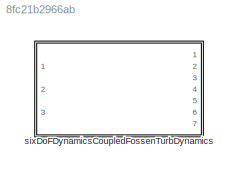
MODEL slx_8fc21b2966ab
KIND library
CONFIG AbsTol = auto
CONFIG EnableMultiTasking = off
CONFIG FixedStep = auto
CONFIG MaxStep = auto
CONFIG MinStep = auto
CONFIG RelTol = 1e-3
CONFIG SampleTimeConstraint = Unconstrained
CONFIG SolverName = VariableStepAuto
CONFIG StartTime = 0.0
CONFIG StopTime = 10.0
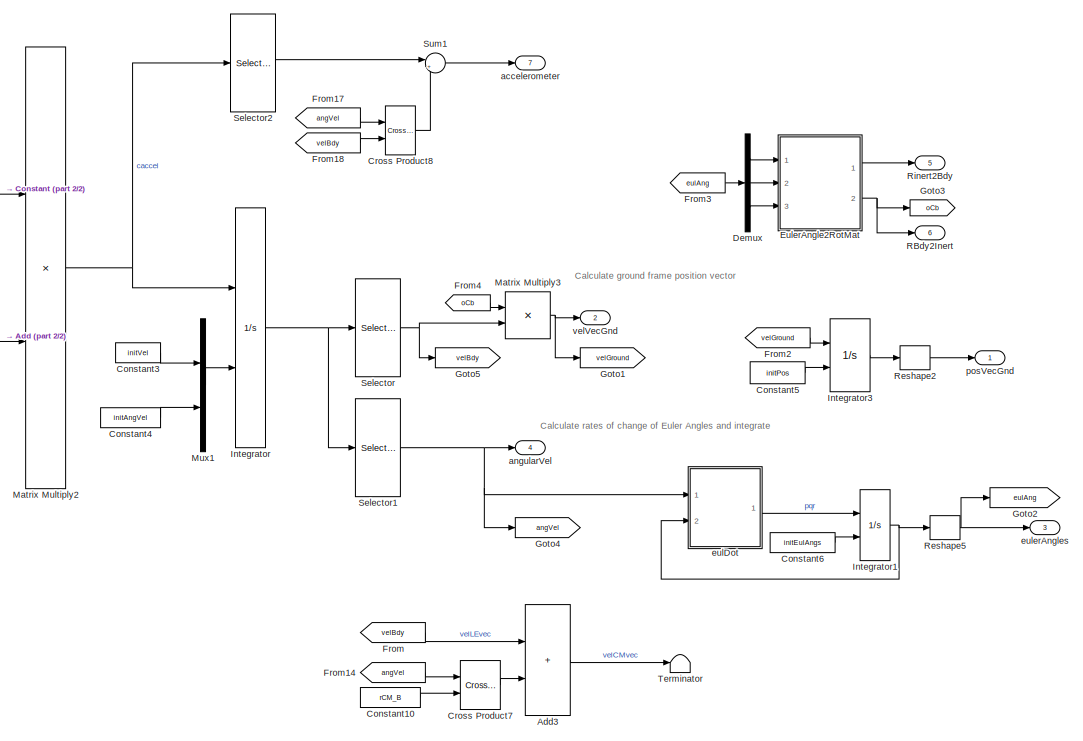
[diagram: sixDoFDynamicsCoupledFossenTurbDynamics - part 1/2, middle right region]
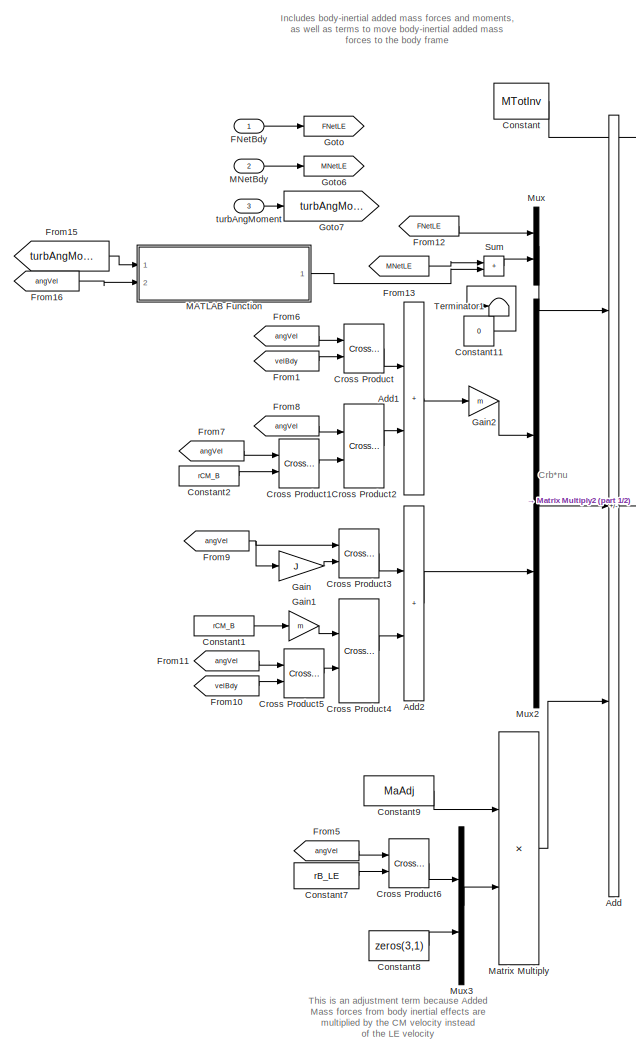
[diagram: sixDoFDynamicsCoupledFossenTurbDynamics - part 2/2, left side, full height]
BLOCK [SubSystem] sixDoFDynamicsCoupledFossenTurbDynamics
  Ports = [3, 7]
  RequestExecContextInheritance = off
  VariantControl = VSS_sixDoFDynamics_sixDoFDynamicsCoupledFossenTurbDynamics
BLOCK [Sum] sixDoFDynamicsCoupledFossenTurbDynamics/Add
  IconShape = rectangular
  Inputs = +-+
  Ports = [3, 1]
BLOCK [Sum] sixDoFDynamicsCoupledFossenTurbDynamics/Add1
  IconShape = rectangular
  Ports = [2, 1]
BLOCK [Sum] sixDoFDynamicsCoupledFossenTurbDynamics/Add2
  IconShape = rectangular
  Ports = [2, 1]
BLOCK [Sum] sixDoFDynamicsCoupledFossenTurbDynamics/Add3
  IconShape = rectangular
  Ports = [2, 1]
BLOCK [Constant] sixDoFDynamicsCoupledFossenTurbDynamics/Constant
  Value = MTotInv
  VectorParams1D = off
BLOCK [Constant] sixDoFDynamicsCoupledFossenTurbDynamics/Constant1
  Value = rCM_B
BLOCK [Constant] sixDoFDynamicsCoupledFossenTurbDynamics/Constant10
  Value = rCM_B
BLOCK [Constant] sixDoFDynamicsCoupledFossenTurbDynamics/Constant11
  Value = 0
BLOCK [Constant] sixDoFDynamicsCoupledFossenTurbDynamics/Constant2
  Value = rCM_B
BLOCK [Constant] sixDoFDynamicsCoupledFossenTurbDynamics/Constant3
  Value = initVel
BLOCK [Constant] sixDoFDynamicsCoupledFossenTurbDynamics/Constant4
  Value = initAngVel
BLOCK [Constant] sixDoFDynamicsCoupledFossenTurbDynamics/Constant5
  Value = initPos
BLOCK [Constant] sixDoFDynamicsCoupledFossenTurbDynamics/Constant6
  Value = initEulAngs
BLOCK [Constant] sixDoFDynamicsCoupledFossenTurbDynamics/Constant7
  Value = rB_LE
BLOCK [Constant] sixDoFDynamicsCoupledFossenTurbDynamics/Constant8
  Value = zeros(3,1)
BLOCK [Constant] sixDoFDynamicsCoupledFossenTurbDynamics/Constant9
  Value = MaAdj
BLOCK [Reference] sixDoFDynamicsCoupledFossenTurbDynamics/Cross Product  REF=vrlib/Utilities/Cross Product
  Ports = [2, 1]
  SourceBlock = vrlib/Utilities/Cross Product
  SourceProductBaseCode = SL
  SourceType = Cross Product
BLOCK [Reference] sixDoFDynamicsCoupledFossenTurbDynamics/Cross Product1  REF=vrlib/Utilities/Cross Product
  Ports = [2, 1]
  SourceBlock = vrlib/Utilities/Cross Product
  SourceProductBaseCode = SL
  SourceType = Cross Product
BLOCK [Reference] sixDoFDynamicsCoupledFossenTurbDynamics/Cross Product2  REF=vrlib/Utilities/Cross Product
  Ports = [2, 1]
  SourceBlock = vrlib/Utilities/Cross Product
  SourceProductBaseCode = SL
  SourceType = Cross Product
BLOCK [Reference] sixDoFDynamicsCoupledFossenTurbDynamics/Cross Product3  REF=vrlib/Utilities/Cross Product
  Ports = [2, 1]
  SourceBlock = vrlib/Utilities/Cross Product
  SourceProductBaseCode = SL
  SourceType = Cross Product
BLOCK [Reference] sixDoFDynamicsCoupledFossenTurbDynamics/Cross Product4  REF=vrlib/Utilities/Cross Product
  Ports = [2, 1]
  SourceBlock = vrlib/Utilities/Cross Product
  SourceProductBaseCode = SL
  SourceType = Cross Product
BLOCK [Reference] sixDoFDynamicsCoupledFossenTurbDynamics/Cross Product5  REF=vrlib/Utilities/Cross Product
  Ports = [2, 1]
  SourceBlock = vrlib/Utilities/Cross Product
  SourceProductBaseCode = SL
  SourceType = Cross Product
BLOCK [Reference] sixDoFDynamicsCoupledFossenTurbDynamics/Cross Product6  REF=vrlib/Utilities/Cross Product
  Ports = [2, 1]
  SourceBlock = vrlib/Utilities/Cross Product
  SourceProductBaseCode = SL
  SourceType = Cross Product
BLOCK [Reference] sixDoFDynamicsCoupledFossenTurbDynamics/Cross Product7  REF=vrlib/Utilities/Cross Product
  Ports = [2, 1]
  SourceBlock = vrlib/Utilities/Cross Product
  SourceProductBaseCode = SL
  SourceType = Cross Product
BLOCK [Reference] sixDoFDynamicsCoupledFossenTurbDynamics/Cross Product8  REF=vrlib/Utilities/Cross Product
  Ports = [2, 1]
  SourceBlock = vrlib/Utilities/Cross Product
  SourceProductBaseCode = SL
  SourceType = Cross Product
BLOCK [Demux] sixDoFDynamicsCoupledFossenTurbDynamics/Demux
  Outputs = 3
  Ports = [1, 3]
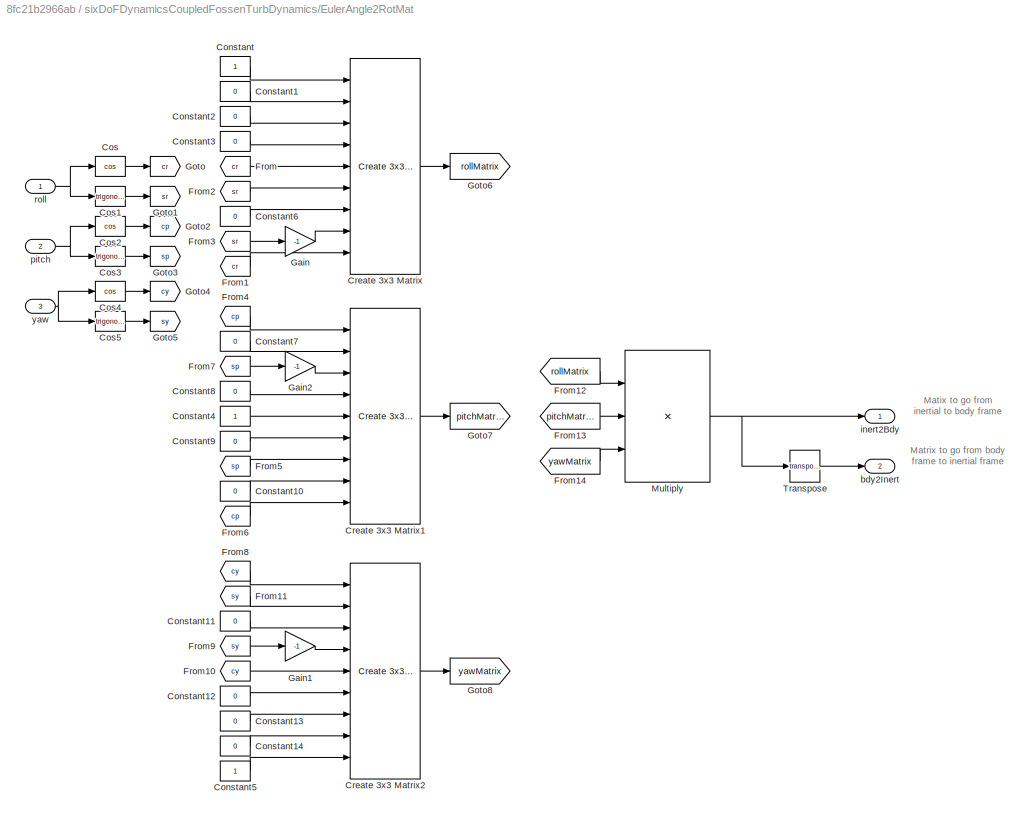
BLOCK [SubSystem] sixDoFDynamicsCoupledFossenTurbDynamics/EulerAngle2RotMat
  AncestorBlock = eulAng2RotMat_ul/EulerAngle2RotMat
  Ports = [3, 2]
  RequestExecContextInheritance = off
BLOCK [Constant] sixDoFDynamicsCoupledFossenTurbDynamics/EulerAngle2RotMat/Constant
BLOCK [Constant] sixDoFDynamicsCoupledFossenTurbDynamics/EulerAngle2RotMat/Constant1
  Value = 0
BLOCK [Constant] sixDoFDynamicsCoupledFossenTurbDynamics/EulerAngle2RotMat/Constant10
  Value = 0
BLOCK [Constant] sixDoFDynamicsCoupledFossenTurbDynamics/EulerAngle2RotMat/Constant11
  Value = 0
BLOCK [Constant] sixDoFDynamicsCoupledFossenTurbDynamics/EulerAngle2RotMat/Constant12
  Value = 0
BLOCK [Constant] sixDoFDynamicsCoupledFossenTurbDynamics/EulerAngle2RotMat/Constant13
  Value = 0
BLOCK [Constant] sixDoFDynamicsCoupledFossenTurbDynamics/EulerAngle2RotMat/Constant14
  Value = 0
BLOCK [Constant] sixDoFDynamicsCoupledFossenTurbDynamics/EulerAngle2RotMat/Constant2
  Value = 0
BLOCK [Constant] sixDoFDynamicsCoupledFossenTurbDynamics/EulerAngle2RotMat/Constant3
  Value = 0
BLOCK [Constant] sixDoFDynamicsCoupledFossenTurbDynamics/EulerAngle2RotMat/Constant4
BLOCK [Constant] sixDoFDynamicsCoupledFossenTurbDynamics/EulerAngle2RotMat/Constant5
BLOCK [Constant] sixDoFDynamicsCoupledFossenTurbDynamics/EulerAngle2RotMat/Constant6
  Value = 0
BLOCK [Constant] sixDoFDynamicsCoupledFossenTurbDynamics/EulerAngle2RotMat/Constant7
  Value = 0
BLOCK [Constant] sixDoFDynamicsCoupledFossenTurbDynamics/EulerAngle2RotMat/Constant8
  Value = 0
BLOCK [Constant] sixDoFDynamicsCoupledFossenTurbDynamics/EulerAngle2RotMat/Constant9
  Value = 0
BLOCK [Trigonometry] sixDoFDynamicsCoupledFossenTurbDynamics/EulerAngle2RotMat/Cos
  Operator = cos
  Ports = [1, 1]
BLOCK [Trigonometry] sixDoFDynamicsCoupledFossenTurbDynamics/EulerAngle2RotMat/Cos1
  Ports = [1, 1]
BLOCK [Trigonometry] sixDoFDynamicsCoupledFossenTurbDynamics/EulerAngle2RotMat/Cos2
  Operator = cos
  Ports = [1, 1]
BLOCK [Trigonometry] sixDoFDynamicsCoupledFossenTurbDynamics/EulerAngle2RotMat/Cos3
  Ports = [1, 1]
BLOCK [Trigonometry] sixDoFDynamicsCoupledFossenTurbDynamics/EulerAngle2RotMat/Cos4
  Operator = cos
  Ports = [1, 1]
BLOCK [Trigonometry] sixDoFDynamicsCoupledFossenTurbDynamics/EulerAngle2RotMat/Cos5
  Ports = [1, 1]
BLOCK [Reference] sixDoFDynamicsCoupledFossenTurbDynamics/EulerAngle2RotMat/Create 3x3 Matrix  REF=sharedutil/Create 3x3 Matrix
  Ports = [9, 1]
  SourceBlock = sharedutil/Create 3x3 Matrix
  SourceProductBaseCode = AE,PW,DR,MT,VE
  SourceType = Create 3x3 Matrix
BLOCK [Reference] sixDoFDynamicsCoupledFossenTurbDynamics/EulerAngle2RotMat/Create 3x3 Matrix1  REF=sharedutil/Create 3x3 Matrix
  Ports = [9, 1]
  SourceBlock = sharedutil/Create 3x3 Matrix
  SourceProductBaseCode = AE,PW,DR,MT,VE
  SourceType = Create 3x3 Matrix
BLOCK [Reference] sixDoFDynamicsCoupledFossenTurbDynamics/EulerAngle2RotMat/Create 3x3 Matrix2  REF=sharedutil/Create 3x3 Matrix
  Ports = [9, 1]
  SourceBlock = sharedutil/Create 3x3 Matrix
  SourceProductBaseCode = AE,PW,DR,MT,VE
  SourceType = Create 3x3 Matrix
BLOCK [From] sixDoFDynamicsCoupledFossenTurbDynamics/EulerAngle2RotMat/From
  GotoTag = cr
BLOCK [From] sixDoFDynamicsCoupledFossenTurbDynamics/EulerAngle2RotMat/From1
  GotoTag = cr
BLOCK [From] sixDoFDynamicsCoupledFossenTurbDynamics/EulerAngle2RotMat/From10
  GotoTag = cy
BLOCK [From] sixDoFDynamicsCoupledFossenTurbDynamics/EulerAngle2RotMat/From11
  GotoTag = sy
BLOCK [From] sixDoFDynamicsCoupledFossenTurbDynamics/EulerAngle2RotMat/From12
  GotoTag = rollMatrix
BLOCK [From] sixDoFDynamicsCoupledFossenTurbDynamics/EulerAngle2RotMat/From13
  GotoTag = pitchMatrix
BLOCK [From] sixDoFDynamicsCoupledFossenTurbDynamics/EulerAngle2RotMat/From14
  GotoTag = yawMatrix
BLOCK [From] sixDoFDynamicsCoupledFossenTurbDynamics/EulerAngle2RotMat/From2
  GotoTag = sr
BLOCK [From] sixDoFDynamicsCoupledFossenTurbDynamics/EulerAngle2RotMat/From3
  GotoTag = sr
BLOCK [From] sixDoFDynamicsCoupledFossenTurbDynamics/EulerAngle2RotMat/From4
  GotoTag = cp
BLOCK [From] sixDoFDynamicsCoupledFossenTurbDynamics/EulerAngle2RotMat/From5
  GotoTag = sp
BLOCK [From] sixDoFDynamicsCoupledFossenTurbDynamics/EulerAngle2RotMat/From6
  GotoTag = cp
BLOCK [From] sixDoFDynamicsCoupledFossenTurbDynamics/EulerAngle2RotMat/From7
  GotoTag = sp
BLOCK [From] sixDoFDynamicsCoupledFossenTurbDynamics/EulerAngle2RotMat/From8
  GotoTag = cy
BLOCK [From] sixDoFDynamicsCoupledFossenTurbDynamics/EulerAngle2RotMat/From9
  GotoTag = sy
BLOCK [Gain] sixDoFDynamicsCoupledFossenTurbDynamics/EulerAngle2RotMat/Gain
  Gain = -1
BLOCK [Gain] sixDoFDynamicsCoupledFossenTurbDynamics/EulerAngle2RotMat/Gain1
  Gain = -1
BLOCK [Gain] sixDoFDynamicsCoupledFossenTurbDynamics/EulerAngle2RotMat/Gain2
  Gain = -1
BLOCK [Goto] sixDoFDynamicsCoupledFossenTurbDynamics/EulerAngle2RotMat/Goto
  GotoTag = cr
BLOCK [Goto] sixDoFDynamicsCoupledFossenTurbDynamics/EulerAngle2RotMat/Goto1
  GotoTag = sr
BLOCK [Goto] sixDoFDynamicsCoupledFossenTurbDynamics/EulerAngle2RotMat/Goto2
  GotoTag = cp
BLOCK [Goto] sixDoFDynamicsCoupledFossenTurbDynamics/EulerAngle2RotMat/Goto3
  GotoTag = sp
BLOCK [Goto] sixDoFDynamicsCoupledFossenTurbDynamics/EulerAngle2RotMat/Goto4
  GotoTag = cy
BLOCK [Goto] sixDoFDynamicsCoupledFossenTurbDynamics/EulerAngle2RotMat/Goto5
  GotoTag = sy
BLOCK [Goto] sixDoFDynamicsCoupledFossenTurbDynamics/EulerAngle2RotMat/Goto6
  GotoTag = rollMatrix
BLOCK [Goto] sixDoFDynamicsCoupledFossenTurbDynamics/EulerAngle2RotMat/Goto7
  GotoTag = pitchMatrix
BLOCK [Goto] sixDoFDynamicsCoupledFossenTurbDynamics/EulerAngle2RotMat/Goto8
  GotoTag = yawMatrix
BLOCK [Product] sixDoFDynamicsCoupledFossenTurbDynamics/EulerAngle2RotMat/Multiply
  Inputs = 3
  Multiplication = Matrix(*)
  Ports = [3, 1]
BLOCK [Math] sixDoFDynamicsCoupledFossenTurbDynamics/EulerAngle2RotMat/Transpose
  Operator = transpose
  Ports = [1, 1]
  SignedPower = on
BLOCK [Outport] sixDoFDynamicsCoupledFossenTurbDynamics/EulerAngle2RotMat/bdy2Inert
  Port = 2
  VectorParamsAs1DForOutWhenUnconnected = off
BLOCK [Outport] sixDoFDynamicsCoupledFossenTurbDynamics/EulerAngle2RotMat/inert2Bdy
  VectorParamsAs1DForOutWhenUnconnected = off
BLOCK [Inport] sixDoFDynamicsCoupledFossenTurbDynamics/EulerAngle2RotMat/pitch
  Port = 2
BLOCK [Inport] sixDoFDynamicsCoupledFossenTurbDynamics/EulerAngle2RotMat/roll
BLOCK [Inport] sixDoFDynamicsCoupledFossenTurbDynamics/EulerAngle2RotMat/yaw
  Port = 3
BLOCK [Inport] sixDoFDynamicsCoupledFossenTurbDynamics/FNetBdy
BLOCK [From] sixDoFDynamicsCoupledFossenTurbDynamics/From
  GotoTag = velBdy
BLOCK [From] sixDoFDynamicsCoupledFossenTurbDynamics/From1
  GotoTag = velBdy
BLOCK [From] sixDoFDynamicsCoupledFossenTurbDynamics/From10
  GotoTag = velBdy
BLOCK [From] sixDoFDynamicsCoupledFossenTurbDynamics/From11
  GotoTag = angVel
BLOCK [From] sixDoFDynamicsCoupledFossenTurbDynamics/From12
  GotoTag = FNetLE
BLOCK [From] sixDoFDynamicsCoupledFossenTurbDynamics/From13
  GotoTag = MNetLE
BLOCK [From] sixDoFDynamicsCoupledFossenTurbDynamics/From14
  GotoTag = angVel
BLOCK [From] sixDoFDynamicsCoupledFossenTurbDynamics/From15
  GotoTag = turbAngMoment
BLOCK [From] sixDoFDynamicsCoupledFossenTurbDynamics/From16
  GotoTag = angVel
BLOCK [From] sixDoFDynamicsCoupledFossenTurbDynamics/From17
  GotoTag = angVel
BLOCK [From] sixDoFDynamicsCoupledFossenTurbDynamics/From18
  GotoTag = velBdy
BLOCK [From] sixDoFDynamicsCoupledFossenTurbDynamics/From2
  GotoTag = velGround
BLOCK [From] sixDoFDynamicsCoupledFossenTurbDynamics/From3
  GotoTag = eulAng
BLOCK [From] sixDoFDynamicsCoupledFossenTurbDynamics/From4
  GotoTag = oCb
BLOCK [From] sixDoFDynamicsCoupledFossenTurbDynamics/From5
  GotoTag = angVel
BLOCK [From] sixDoFDynamicsCoupledFossenTurbDynamics/From6
  GotoTag = angVel
BLOCK [From] sixDoFDynamicsCoupledFossenTurbDynamics/From7
  GotoTag = angVel
BLOCK [From] sixDoFDynamicsCoupledFossenTurbDynamics/From8
  GotoTag = angVel
BLOCK [From] sixDoFDynamicsCoupledFossenTurbDynamics/From9
  GotoTag = angVel
BLOCK [Gain] sixDoFDynamicsCoupledFossenTurbDynamics/Gain
  Gain = J
  Multiplication = Matrix(K*u)
BLOCK [Gain] sixDoFDynamicsCoupledFossenTurbDynamics/Gain1
  Gain = m
BLOCK [Gain] sixDoFDynamicsCoupledFossenTurbDynamics/Gain2
  Gain = m
BLOCK [Goto] sixDoFDynamicsCoupledFossenTurbDynamics/Goto
  GotoTag = FNetLE
BLOCK [Goto] sixDoFDynamicsCoupledFossenTurbDynamics/Goto1
  GotoTag = velGround
BLOCK [Goto] sixDoFDynamicsCoupledFossenTurbDynamics/Goto2
  GotoTag = eulAng
BLOCK [Goto] sixDoFDynamicsCoupledFossenTurbDynamics/Goto3
  GotoTag = oCb
BLOCK [Goto] sixDoFDynamicsCoupledFossenTurbDynamics/Goto4
  GotoTag = angVel
BLOCK [Goto] sixDoFDynamicsCoupledFossenTurbDynamics/Goto5
  GotoTag = velBdy
BLOCK [Goto] sixDoFDynamicsCoupledFossenTurbDynamics/Goto6
  GotoTag = MNetLE
BLOCK [Goto] sixDoFDynamicsCoupledFossenTurbDynamics/Goto7
  GotoTag = turbAngMoment
BLOCK [Integrator] sixDoFDynamicsCoupledFossenTurbDynamics/Integrator
  InitialConditionSource = external
  Ports = [2, 1]
BLOCK [Integrator] sixDoFDynamicsCoupledFossenTurbDynamics/Integrator1
  InitialCondition = initEulAngs
  InitialConditionSource = external
  Ports = [2, 1]
BLOCK [Integrator] sixDoFDynamicsCoupledFossenTurbDynamics/Integrator3
  InitialCondition = initPos
  InitialConditionSource = external
  Ports = [2, 1]
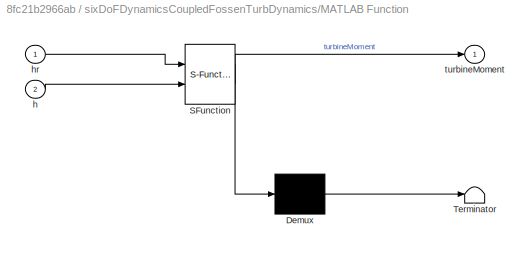
BLOCK [SubSystem] sixDoFDynamicsCoupledFossenTurbDynamics/MATLAB Function
  ErrorFcn = Stateflow.Translate.translate
  PermitHierarchicalResolution = ExplicitOnly
  Ports = [2, 1]
  RequestExecContextInheritance = off
  SFBlockType = MATLAB Function
  TreatAsAtomicUnit = on
BLOCK [Demux] sixDoFDynamicsCoupledFossenTurbDynamics/MATLAB Function/ Demux 
  Outputs = 1
  Ports = [1, 1]
BLOCK [S-Function] sixDoFDynamicsCoupledFossenTurbDynamics/MATLAB Function/ SFunction 
  EnableBusSupport = off
  FunctionName = sf_sfun
  PortCounts = [2 2]
  Ports = [2, 2]
  SFcnIsStateOwnerBlock = off
  SFunctionDeploymentMode = off
  Tag = Stateflow S-Function 113
BLOCK [Terminator] sixDoFDynamicsCoupledFossenTurbDynamics/MATLAB Function/ Terminator 
BLOCK [Inport] sixDoFDynamicsCoupledFossenTurbDynamics/MATLAB Function/h
  Port = 2
BLOCK [Inport] sixDoFDynamicsCoupledFossenTurbDynamics/MATLAB Function/hr
BLOCK [Outport] sixDoFDynamicsCoupledFossenTurbDynamics/MATLAB Function/turbineMoment
BLOCK [Inport] sixDoFDynamicsCoupledFossenTurbDynamics/MNetBdy
  Port = 2
BLOCK [Product] sixDoFDynamicsCoupledFossenTurbDynamics/Matrix Multiply
  Multiplication = Matrix(*)
  Ports = [2, 1]
BLOCK [Product] sixDoFDynamicsCoupledFossenTurbDynamics/Matrix Multiply2
  Multiplication = Matrix(*)
  Ports = [2, 1]
BLOCK [Product] sixDoFDynamicsCoupledFossenTurbDynamics/Matrix Multiply3
  Multiplication = Matrix(*)
  Ports = [2, 1]
BLOCK [Mux] sixDoFDynamicsCoupledFossenTurbDynamics/Mux
  DisplayOption = bar
  Inputs = 2
  Ports = [2, 1]
BLOCK [Mux] sixDoFDynamicsCoupledFossenTurbDynamics/Mux1
  DisplayOption = bar
  Inputs = 2
  Ports = [2, 1]
BLOCK [Mux] sixDoFDynamicsCoupledFossenTurbDynamics/Mux2
  DisplayOption = bar
  Inputs = 2
  Ports = [2, 1]
BLOCK [Mux] sixDoFDynamicsCoupledFossenTurbDynamics/Mux3
  DisplayOption = bar
  Inputs = 2
  Ports = [2, 1]
BLOCK [Outport] sixDoFDynamicsCoupledFossenTurbDynamics/RBdy2Inert
  Port = 6
  VectorParamsAs1DForOutWhenUnconnected = off
BLOCK [Reshape] sixDoFDynamicsCoupledFossenTurbDynamics/Reshape2
  OutputDimensionality = Column vector (2-D)
  Ports = [1, 1]
BLOCK [Reshape] sixDoFDynamicsCoupledFossenTurbDynamics/Reshape5
  OutputDimensionality = Column vector (2-D)
  Ports = [1, 1]
BLOCK [Outport] sixDoFDynamicsCoupledFossenTurbDynamics/Rinert2Bdy
  Port = 5
  VectorParamsAs1DForOutWhenUnconnected = off
BLOCK [Selector] sixDoFDynamicsCoupledFossenTurbDynamics/Selector
  IndexOptions = Index vector (dialog)
  Indices = [1 2 3]
  InputPortWidth = 6
  OutputSizes = 1
  Ports = [1, 1]
BLOCK [Selector] sixDoFDynamicsCoupledFossenTurbDynamics/Selector1
  IndexOptions = Index vector (dialog)
  Indices = [4 5 6]
  InputPortWidth = 6
  OutputSizes = 1
  Ports = [1, 1]
BLOCK [Selector] sixDoFDynamicsCoupledFossenTurbDynamics/Selector2
  IndexOptions = Index vector (dialog)
  Indices = [1 2 3]
  InputPortWidth = 6
  OutputSizes = 1
  Ports = [1, 1]
BLOCK [Sum] sixDoFDynamicsCoupledFossenTurbDynamics/Sum
  IconShape = rectangular
  Ports = [2, 1]
BLOCK [Sum] sixDoFDynamicsCoupledFossenTurbDynamics/Sum1
  Inputs = |++
  Ports = [2, 1]
BLOCK [Terminator] sixDoFDynamicsCoupledFossenTurbDynamics/Terminator
BLOCK [Terminator] sixDoFDynamicsCoupledFossenTurbDynamics/Terminator1
BLOCK [Outport] sixDoFDynamicsCoupledFossenTurbDynamics/accelerometer
  Port = 7
  VectorParamsAs1DForOutWhenUnconnected = off
BLOCK [Outport] sixDoFDynamicsCoupledFossenTurbDynamics/angularVel
  Port = 4
  VectorParamsAs1DForOutWhenUnconnected = off
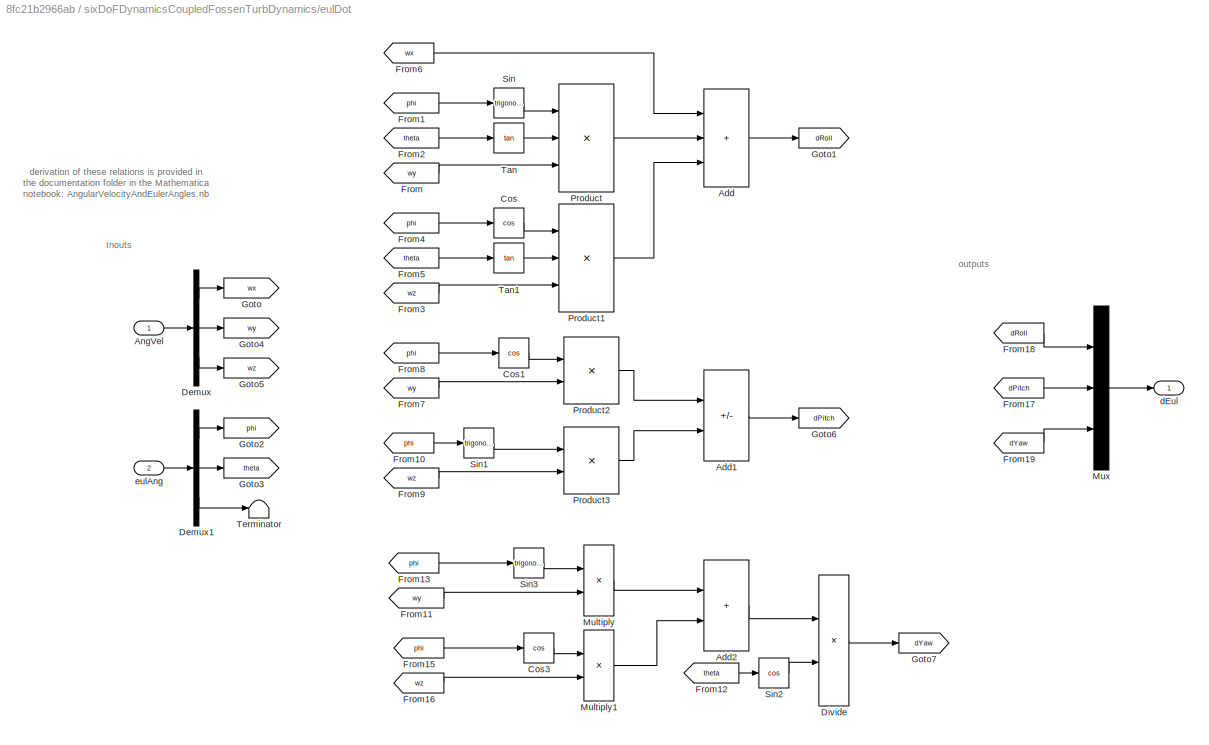
BLOCK [SubSystem] sixDoFDynamicsCoupledFossenTurbDynamics/eulDot
  AncestorBlock = eulDot/eulDot
  Ports = [2, 1]
  RequestExecContextInheritance = off
BLOCK [Sum] sixDoFDynamicsCoupledFossenTurbDynamics/eulDot/Add
  IconShape = rectangular
  Inputs = +++
  Ports = [3, 1]
BLOCK [Sum] sixDoFDynamicsCoupledFossenTurbDynamics/eulDot/Add1
  IconShape = rectangular
  Inputs = +-
  Ports = [2, 1]
BLOCK [Sum] sixDoFDynamicsCoupledFossenTurbDynamics/eulDot/Add2
  IconShape = rectangular
  Ports = [2, 1]
BLOCK [Inport] sixDoFDynamicsCoupledFossenTurbDynamics/eulDot/AngVel
BLOCK [Trigonometry] sixDoFDynamicsCoupledFossenTurbDynamics/eulDot/Cos
  Operator = cos
  Ports = [1, 1]
BLOCK [Trigonometry] sixDoFDynamicsCoupledFossenTurbDynamics/eulDot/Cos1
  Operator = cos
  Ports = [1, 1]
BLOCK [Trigonometry] sixDoFDynamicsCoupledFossenTurbDynamics/eulDot/Cos3
  Operator = cos
  Ports = [1, 1]
BLOCK [Demux] sixDoFDynamicsCoupledFossenTurbDynamics/eulDot/Demux
  Outputs = 3
  Ports = [1, 3]
BLOCK [Demux] sixDoFDynamicsCoupledFossenTurbDynamics/eulDot/Demux1
  Outputs = 3
  Ports = [1, 3]
BLOCK [Product] sixDoFDynamicsCoupledFossenTurbDynamics/eulDot/Divide
  Inputs = */
  Ports = [2, 1]
BLOCK [From] sixDoFDynamicsCoupledFossenTurbDynamics/eulDot/From
  GotoTag = wy
BLOCK [From] sixDoFDynamicsCoupledFossenTurbDynamics/eulDot/From1
  GotoTag = phi
BLOCK [From] sixDoFDynamicsCoupledFossenTurbDynamics/eulDot/From10
  GotoTag = phi
BLOCK [From] sixDoFDynamicsCoupledFossenTurbDynamics/eulDot/From11
  GotoTag = wy
BLOCK [From] sixDoFDynamicsCoupledFossenTurbDynamics/eulDot/From12
  GotoTag = theta
BLOCK [From] sixDoFDynamicsCoupledFossenTurbDynamics/eulDot/From13
  GotoTag = phi
BLOCK [From] sixDoFDynamicsCoupledFossenTurbDynamics/eulDot/From15
  GotoTag = phi
BLOCK [From] sixDoFDynamicsCoupledFossenTurbDynamics/eulDot/From16
  GotoTag = wz
BLOCK [From] sixDoFDynamicsCoupledFossenTurbDynamics/eulDot/From17
  GotoTag = dPitch
BLOCK [From] sixDoFDynamicsCoupledFossenTurbDynamics/eulDot/From18
  GotoTag = dRoll
BLOCK [From] sixDoFDynamicsCoupledFossenTurbDynamics/eulDot/From19
  GotoTag = dYaw
BLOCK [From] sixDoFDynamicsCoupledFossenTurbDynamics/eulDot/From2
  GotoTag = theta
BLOCK [From] sixDoFDynamicsCoupledFossenTurbDynamics/eulDot/From3
  GotoTag = wz
BLOCK [From] sixDoFDynamicsCoupledFossenTurbDynamics/eulDot/From4
  GotoTag = phi
BLOCK [From] sixDoFDynamicsCoupledFossenTurbDynamics/eulDot/From5
  GotoTag = theta
BLOCK [From] sixDoFDynamicsCoupledFossenTurbDynamics/eulDot/From6
  GotoTag = wx
BLOCK [From] sixDoFDynamicsCoupledFossenTurbDynamics/eulDot/From7
  GotoTag = wy
BLOCK [From] sixDoFDynamicsCoupledFossenTurbDynamics/eulDot/From8
  GotoTag = phi
BLOCK [From] sixDoFDynamicsCoupledFossenTurbDynamics/eulDot/From9
  GotoTag = wz
BLOCK [Goto] sixDoFDynamicsCoupledFossenTurbDynamics/eulDot/Goto
  GotoTag = wx
BLOCK [Goto] sixDoFDynamicsCoupledFossenTurbDynamics/eulDot/Goto1
  GotoTag = dRoll
BLOCK [Goto] sixDoFDynamicsCoupledFossenTurbDynamics/eulDot/Goto2
  GotoTag = phi
BLOCK [Goto] sixDoFDynamicsCoupledFossenTurbDynamics/eulDot/Goto3
  GotoTag = theta
BLOCK [Goto] sixDoFDynamicsCoupledFossenTurbDynamics/eulDot/Goto4
  GotoTag = wy
BLOCK [Goto] sixDoFDynamicsCoupledFossenTurbDynamics/eulDot/Goto5
  GotoTag = wz
BLOCK [Goto] sixDoFDynamicsCoupledFossenTurbDynamics/eulDot/Goto6
  GotoTag = dPitch
BLOCK [Goto] sixDoFDynamicsCoupledFossenTurbDynamics/eulDot/Goto7
  GotoTag = dYaw
BLOCK [Product] sixDoFDynamicsCoupledFossenTurbDynamics/eulDot/Multiply
  Ports = [2, 1]
BLOCK [Product] sixDoFDynamicsCoupledFossenTurbDynamics/eulDot/Multiply1
  Ports = [2, 1]
BLOCK [Mux] sixDoFDynamicsCoupledFossenTurbDynamics/eulDot/Mux
  DisplayOption = bar
  Inputs = 3
  Ports = [3, 1]
BLOCK [Product] sixDoFDynamicsCoupledFossenTurbDynamics/eulDot/Product
  Inputs = 3
  Ports = [3, 1]
BLOCK [Product] sixDoFDynamicsCoupledFossenTurbDynamics/eulDot/Product1
  Inputs = 3
  Ports = [3, 1]
BLOCK [Product] sixDoFDynamicsCoupledFossenTurbDynamics/eulDot/Product2
  Ports = [2, 1]
BLOCK [Product] sixDoFDynamicsCoupledFossenTurbDynamics/eulDot/Product3
  Ports = [2, 1]
BLOCK [Trigonometry] sixDoFDynamicsCoupledFossenTurbDynamics/eulDot/Sin
  Ports = [1, 1]
BLOCK [Trigonometry] sixDoFDynamicsCoupledFossenTurbDynamics/eulDot/Sin1
  Ports = [1, 1]
BLOCK [Trigonometry] sixDoFDynamicsCoupledFossenTurbDynamics/eulDot/Sin2
  Operator = cos
  Ports = [1, 1]
BLOCK [Trigonometry] sixDoFDynamicsCoupledFossenTurbDynamics/eulDot/Sin3
  Ports = [1, 1]
BLOCK [Trigonometry] sixDoFDynamicsCoupledFossenTurbDynamics/eulDot/Tan
  Operator = tan
  Ports = [1, 1]
BLOCK [Trigonometry] sixDoFDynamicsCoupledFossenTurbDynamics/eulDot/Tan1
  Operator = tan
  Ports = [1, 1]
BLOCK [Terminator] sixDoFDynamicsCoupledFossenTurbDynamics/eulDot/Terminator
BLOCK [Outport] sixDoFDynamicsCoupledFossenTurbDynamics/eulDot/dEul
  VectorParamsAs1DForOutWhenUnconnected = off
BLOCK [Inport] sixDoFDynamicsCoupledFossenTurbDynamics/eulDot/eulAng
  Port = 2
BLOCK [Outport] sixDoFDynamicsCoupledFossenTurbDynamics/eulerAngles
  Port = 3
  VectorParamsAs1DForOutWhenUnconnected = off
BLOCK [Outport] sixDoFDynamicsCoupledFossenTurbDynamics/posVecGnd
  VectorParamsAs1DForOutWhenUnconnected = off
BLOCK [Inport] sixDoFDynamicsCoupledFossenTurbDynamics/turbAngMoment
  Port = 3
BLOCK [Outport] sixDoFDynamicsCoupledFossenTurbDynamics/velVecGnd
  Port = 2
  VectorParamsAs1DForOutWhenUnconnected = off
ANNOTATION sixDoFDynamicsCoupledFossenTurbDynamics: Includes body-inertial added mass forces and moments, as well as terms to move body-inertial added mass forces to the body frame
ANNOTATION sixDoFDynamicsCoupledFossenTurbDynamics: This is an adjustment term because Added Mass forces from body inertial effects are multiplied by the CM velocity instead of the LE velocity
ANNOTATION sixDoFDynamicsCoupledFossenTurbDynamics: Calculate ground frame position vector
ANNOTATION sixDoFDynamicsCoupledFossenTurbDynamics: Calculate rates of change of Euler Angles and integrate
ANNOTATION sixDoFDynamicsCoupledFossenTurbDynamics: Crb*nu
ANNOTATION sixDoFDynamicsCoupledFossenTurbDynamics/EulerAngle2RotMat: Matix to go from inertial to body frame
ANNOTATION sixDoFDynamicsCoupledFossenTurbDynamics/EulerAngle2RotMat: Matrix to go from body frame to inertial frame
ANNOTATION sixDoFDynamicsCoupledFossenTurbDynamics/eulDot: Inouts
ANNOTATION sixDoFDynamicsCoupledFossenTurbDynamics/eulDot: derivation of these relations is provided in the documentation folder in the Mathematica notebook: AngularVelocityAndEulerAngles.nb
ANNOTATION sixDoFDynamicsCoupledFossenTurbDynamics/eulDot: outputs
LINE sixDoFDynamicsCoupledFossenTurbDynamics/Add1:1 -> sixDoFDynamicsCoupledFossenTurbDynamics/Gain2:1
LINE sixDoFDynamicsCoupledFossenTurbDynamics/Add2:1 -> sixDoFDynamicsCoupledFossenTurbDynamics/Mux2:2
LINE sixDoFDynamicsCoupledFossenTurbDynamics/Add3:1 -> sixDoFDynamicsCoupledFossenTurbDynamics/Terminator:1
LINE sixDoFDynamicsCoupledFossenTurbDynamics/Add:1 -> sixDoFDynamicsCoupledFossenTurbDynamics/Matrix Multiply2:2
LINE sixDoFDynamicsCoupledFossenTurbDynamics/Constant10:1 -> sixDoFDynamicsCoupledFossenTurbDynamics/Cross Product7:2
LINE sixDoFDynamicsCoupledFossenTurbDynamics/Constant11:1 -> sixDoFDynamicsCoupledFossenTurbDynamics/Terminator1:1
LINE sixDoFDynamicsCoupledFossenTurbDynamics/Constant1:1 -> sixDoFDynamicsCoupledFossenTurbDynamics/Gain1:1
LINE sixDoFDynamicsCoupledFossenTurbDynamics/Constant2:1 -> sixDoFDynamicsCoupledFossenTurbDynamics/Cross Product1:2
LINE sixDoFDynamicsCoupledFossenTurbDynamics/Constant3:1 -> sixDoFDynamicsCoupledFossenTurbDynamics/Mux1:1
LINE sixDoFDynamicsCoupledFossenTurbDynamics/Constant4:1 -> sixDoFDynamicsCoupledFossenTurbDynamics/Mux1:2
LINE sixDoFDynamicsCoupledFossenTurbDynamics/Constant5:1 -> sixDoFDynamicsCoupledFossenTurbDynamics/Integrator3:2
LINE sixDoFDynamicsCoupledFossenTurbDynamics/Constant6:1 -> sixDoFDynamicsCoupledFossenTurbDynamics/Integrator1:2
LINE sixDoFDynamicsCoupledFossenTurbDynamics/Constant7:1 -> sixDoFDynamicsCoupledFossenTurbDynamics/Cross Product6:2
LINE sixDoFDynamicsCoupledFossenTurbDynamics/Constant8:1 -> sixDoFDynamicsCoupledFossenTurbDynamics/Mux3:2
LINE sixDoFDynamicsCoupledFossenTurbDynamics/Constant9:1 -> sixDoFDynamicsCoupledFossenTurbDynamics/Matrix Multiply:1
LINE sixDoFDynamicsCoupledFossenTurbDynamics/Constant:1 -> sixDoFDynamicsCoupledFossenTurbDynamics/Matrix Multiply2:1
LINE sixDoFDynamicsCoupledFossenTurbDynamics/Cross Product1:1 -> sixDoFDynamicsCoupledFossenTurbDynamics/Cross Product2:2
LINE sixDoFDynamicsCoupledFossenTurbDynamics/Cross Product2:1 -> sixDoFDynamicsCoupledFossenTurbDynamics/Add1:2
LINE sixDoFDynamicsCoupledFossenTurbDynamics/Cross Product3:1 -> sixDoFDynamicsCoupledFossenTurbDynamics/Add2:1
LINE sixDoFDynamicsCoupledFossenTurbDynamics/Cross Product4:1 -> sixDoFDynamicsCoupledFossenTurbDynamics/Add2:2
LINE sixDoFDynamicsCoupledFossenTurbDynamics/Cross Product5:1 -> sixDoFDynamicsCoupledFossenTurbDynamics/Cross Product4:2
LINE sixDoFDynamicsCoupledFossenTurbDynamics/Cross Product6:1 -> sixDoFDynamicsCoupledFossenTurbDynamics/Mux3:1
LINE sixDoFDynamicsCoupledFossenTurbDynamics/Cross Product7:1 -> sixDoFDynamicsCoupledFossenTurbDynamics/Add3:2
LINE sixDoFDynamicsCoupledFossenTurbDynamics/Cross Product8:1 -> sixDoFDynamicsCoupledFossenTurbDynamics/Sum1:2
LINE sixDoFDynamicsCoupledFossenTurbDynamics/Cross Product:1 -> sixDoFDynamicsCoupledFossenTurbDynamics/Add1:1
LINE sixDoFDynamicsCoupledFossenTurbDynamics/Demux:1 -> sixDoFDynamicsCoupledFossenTurbDynamics/EulerAngle2RotMat:1
LINE sixDoFDynamicsCoupledFossenTurbDynamics/Demux:2 -> sixDoFDynamicsCoupledFossenTurbDynamics/EulerAngle2RotMat:2
LINE sixDoFDynamicsCoupledFossenTurbDynamics/Demux:3 -> sixDoFDynamicsCoupledFossenTurbDynamics/EulerAngle2RotMat:3
LINE sixDoFDynamicsCoupledFossenTurbDynamics/EulerAngle2RotMat:1 -> sixDoFDynamicsCoupledFossenTurbDynamics/Rinert2Bdy:1
NET sixDoFDynamicsCoupledFossenTurbDynamics/EulerAngle2RotMat:2 -> sixDoFDynamicsCoupledFossenTurbDynamics/Goto3:1, sixDoFDynamicsCoupledFossenTurbDynamics/RBdy2Inert:1
LINE sixDoFDynamicsCoupledFossenTurbDynamics/FNetBdy:1 -> sixDoFDynamicsCoupledFossenTurbDynamics/Goto:1
LINE sixDoFDynamicsCoupledFossenTurbDynamics/From10:1 -> sixDoFDynamicsCoupledFossenTurbDynamics/Cross Product5:2
LINE sixDoFDynamicsCoupledFossenTurbDynamics/From11:1 -> sixDoFDynamicsCoupledFossenTurbDynamics/Cross Product5:1
LINE sixDoFDynamicsCoupledFossenTurbDynamics/From12:1 -> sixDoFDynamicsCoupledFossenTurbDynamics/Mux:1
LINE sixDoFDynamicsCoupledFossenTurbDynamics/From13:1 -> sixDoFDynamicsCoupledFossenTurbDynamics/Sum:1
LINE sixDoFDynamicsCoupledFossenTurbDynamics/From14:1 -> sixDoFDynamicsCoupledFossenTurbDynamics/Cross Product7:1
LINE sixDoFDynamicsCoupledFossenTurbDynamics/From15:1 -> sixDoFDynamicsCoupledFossenTurbDynamics/MATLAB Function:1
LINE sixDoFDynamicsCoupledFossenTurbDynamics/From16:1 -> sixDoFDynamicsCoupledFossenTurbDynamics/MATLAB Function:2
LINE sixDoFDynamicsCoupledFossenTurbDynamics/From17:1 -> sixDoFDynamicsCoupledFossenTurbDynamics/Cross Product8:1
LINE sixDoFDynamicsCoupledFossenTurbDynamics/From18:1 -> sixDoFDynamicsCoupledFossenTurbDynamics/Cross Product8:2
LINE sixDoFDynamicsCoupledFossenTurbDynamics/From1:1 -> sixDoFDynamicsCoupledFossenTurbDynamics/Cross Product:2
LINE sixDoFDynamicsCoupledFossenTurbDynamics/From2:1 -> sixDoFDynamicsCoupledFossenTurbDynamics/Integrator3:1
LINE sixDoFDynamicsCoupledFossenTurbDynamics/From3:1 -> sixDoFDynamicsCoupledFossenTurbDynamics/Demux:1
LINE sixDoFDynamicsCoupledFossenTurbDynamics/From4:1 -> sixDoFDynamicsCoupledFossenTurbDynamics/Matrix Multiply3:1
LINE sixDoFDynamicsCoupledFossenTurbDynamics/From5:1 -> sixDoFDynamicsCoupledFossenTurbDynamics/Cross Product6:1
LINE sixDoFDynamicsCoupledFossenTurbDynamics/From6:1 -> sixDoFDynamicsCoupledFossenTurbDynamics/Cross Product:1
LINE sixDoFDynamicsCoupledFossenTurbDynamics/From7:1 -> sixDoFDynamicsCoupledFossenTurbDynamics/Cross Product1:1
LINE sixDoFDynamicsCoupledFossenTurbDynamics/From8:1 -> sixDoFDynamicsCoupledFossenTurbDynamics/Cross Product2:1
NET sixDoFDynamicsCoupledFossenTurbDynamics/From9:1 -> sixDoFDynamicsCoupledFossenTurbDynamics/Cross Product3:1, sixDoFDynamicsCoupledFossenTurbDynamics/Gain:1
LINE sixDoFDynamicsCoupledFossenTurbDynamics/From:1 -> sixDoFDynamicsCoupledFossenTurbDynamics/Add3:1
LINE sixDoFDynamicsCoupledFossenTurbDynamics/Gain1:1 -> sixDoFDynamicsCoupledFossenTurbDynamics/Cross Product4:1
LINE sixDoFDynamicsCoupledFossenTurbDynamics/Gain2:1 -> sixDoFDynamicsCoupledFossenTurbDynamics/Mux2:1
LINE sixDoFDynamicsCoupledFossenTurbDynamics/Gain:1 -> sixDoFDynamicsCoupledFossenTurbDynamics/Cross Product3:2
NET sixDoFDynamicsCoupledFossenTurbDynamics/Integrator1:1 -> sixDoFDynamicsCoupledFossenTurbDynamics/Reshape5:1, sixDoFDynamicsCoupledFossenTurbDynamics/eulDot:2
LINE sixDoFDynamicsCoupledFossenTurbDynamics/Integrator3:1 -> sixDoFDynamicsCoupledFossenTurbDynamics/Reshape2:1
NET sixDoFDynamicsCoupledFossenTurbDynamics/Integrator:1 -> sixDoFDynamicsCoupledFossenTurbDynamics/Selector1:1, sixDoFDynamicsCoupledFossenTurbDynamics/Selector:1
LINE sixDoFDynamicsCoupledFossenTurbDynamics/MATLAB Function:1 -> sixDoFDynamicsCoupledFossenTurbDynamics/Sum:2
LINE sixDoFDynamicsCoupledFossenTurbDynamics/MNetBdy:1 -> sixDoFDynamicsCoupledFossenTurbDynamics/Goto6:1
NET sixDoFDynamicsCoupledFossenTurbDynamics/Matrix Multiply2:1 -> sixDoFDynamicsCoupledFossenTurbDynamics/Integrator:1, sixDoFDynamicsCoupledFossenTurbDynamics/Selector2:1
NET sixDoFDynamicsCoupledFossenTurbDynamics/Matrix Multiply3:1 -> sixDoFDynamicsCoupledFossenTurbDynamics/Goto1:1, sixDoFDynamicsCoupledFossenTurbDynamics/velVecGnd:1
LINE sixDoFDynamicsCoupledFossenTurbDynamics/Matrix Multiply:1 -> sixDoFDynamicsCoupledFossenTurbDynamics/Add:3
LINE sixDoFDynamicsCoupledFossenTurbDynamics/Mux1:1 -> sixDoFDynamicsCoupledFossenTurbDynamics/Integrator:2
LINE sixDoFDynamicsCoupledFossenTurbDynamics/Mux2:1 -> sixDoFDynamicsCoupledFossenTurbDynamics/Add:2
LINE sixDoFDynamicsCoupledFossenTurbDynamics/Mux3:1 -> sixDoFDynamicsCoupledFossenTurbDynamics/Matrix Multiply:2
LINE sixDoFDynamicsCoupledFossenTurbDynamics/Mux:1 -> sixDoFDynamicsCoupledFossenTurbDynamics/Add:1
LINE sixDoFDynamicsCoupledFossenTurbDynamics/Reshape2:1 -> sixDoFDynamicsCoupledFossenTurbDynamics/posVecGnd:1
NET sixDoFDynamicsCoupledFossenTurbDynamics/Reshape5:1 -> sixDoFDynamicsCoupledFossenTurbDynamics/Goto2:1, sixDoFDynamicsCoupledFossenTurbDynamics/eulerAngles:1
NET sixDoFDynamicsCoupledFossenTurbDynamics/Selector1:1 -> sixDoFDynamicsCoupledFossenTurbDynamics/Goto4:1, sixDoFDynamicsCoupledFossenTurbDynamics/angularVel:1, sixDoFDynamicsCoupledFossenTurbDynamics/eulDot:1
LINE sixDoFDynamicsCoupledFossenTurbDynamics/Selector2:1 -> sixDoFDynamicsCoupledFossenTurbDynamics/Sum1:1
NET sixDoFDynamicsCoupledFossenTurbDynamics/Selector:1 -> sixDoFDynamicsCoupledFossenTurbDynamics/Goto5:1, sixDoFDynamicsCoupledFossenTurbDynamics/Matrix Multiply3:2
LINE sixDoFDynamicsCoupledFossenTurbDynamics/Sum1:1 -> sixDoFDynamicsCoupledFossenTurbDynamics/accelerometer:1
LINE sixDoFDynamicsCoupledFossenTurbDynamics/Sum:1 -> sixDoFDynamicsCoupledFossenTurbDynamics/Mux:2
LINE sixDoFDynamicsCoupledFossenTurbDynamics/eulDot:1 -> sixDoFDynamicsCoupledFossenTurbDynamics/Integrator1:1
LINE sixDoFDynamicsCoupledFossenTurbDynamics/turbAngMoment:1 -> sixDoFDynamicsCoupledFossenTurbDynamics/Goto7:1
note: NET lines group one-source signal fan-out (src -> all destinations, sorted); 1:1 wires keep LINE
CHART sixDoFDynamicsCoupledFossenTurbDynamics/MATLAB Function states=1 transitions=1
  STATE_LABEL 'eML_blk_kernel()'
  STATE_LABEL 'SCRIPT:\nfunction turbineMoment = fcn(hr,h)\n    turbineMoment = [hr(2)*h(3)-hr(3)*h(2) ;...\n                     hr(3)*h(1)-hr(1)*h(3) ;...\n                     hr(1)*h(2)-hr(2)*h(1) ];\n    \nend\n'
CHART  states=0 transitions=0
